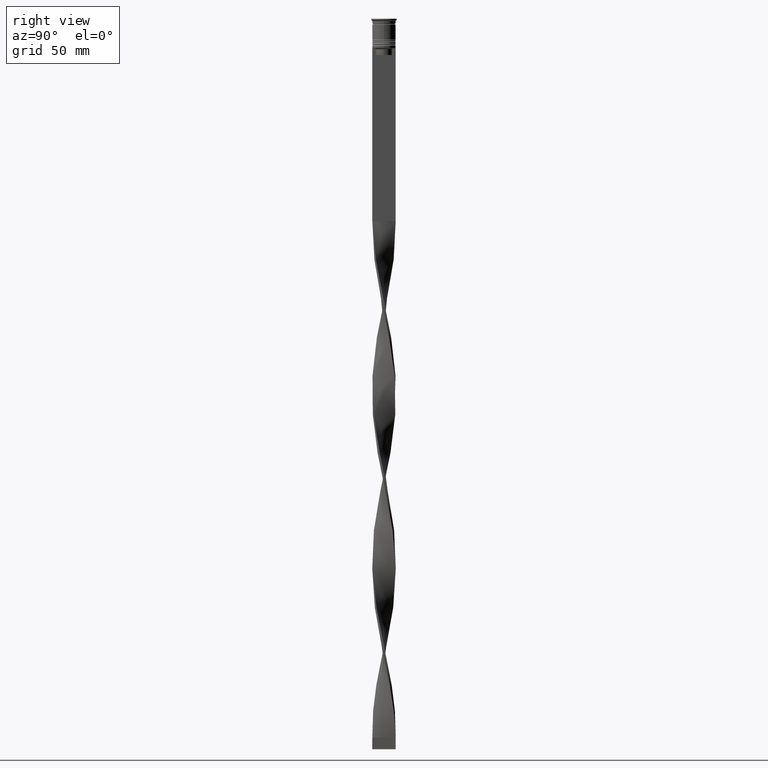
[diagram: clean part render]
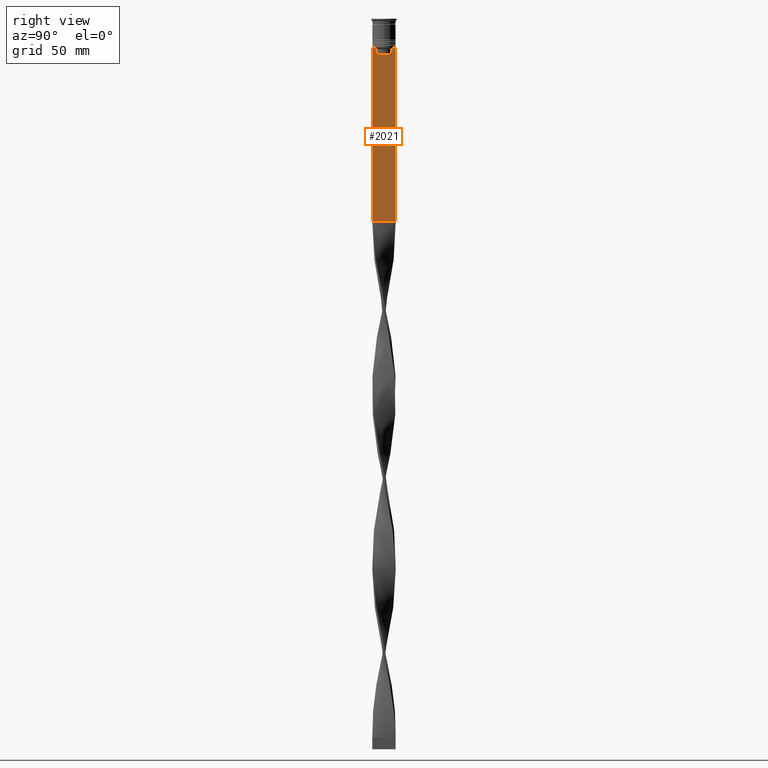
[diagram: same view with one face highlighted and labeled with its STEP entity id]
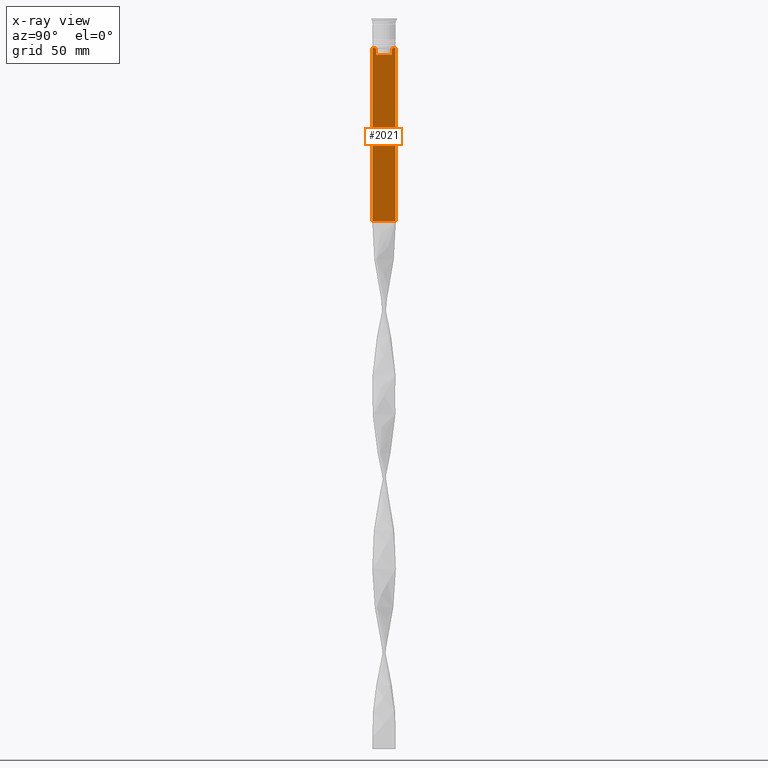
[diagram: x-ray of the same camera — body ghosted, the highlighted face saturated]
A machine part, right view. The second image highlights one B-rep face of the part: STEP entity #2021.
The next image is the same camera in x-ray: the body ghosted, the highlighted face saturated — about 0% of this face is hidden behind the body in this view.
In plain terms, the highlighted planar face has unit normal (-1, 0, 0).
Its self-contained STEP definition (entity closure, byte-faithful):
#77 = FACE_OUTER_BOUND ( 'NONE', #538, .T. ) ;
#220 = VECTOR ( 'NONE', #2049, 1000.000000000000000 ) ;
#249 = ORIENTED_EDGE ( 'NONE', *, *, #2091, .T. ) ;
#256 = VERTEX_POINT ( 'NONE', #3666 ) ;
#277 = CARTESIAN_POINT ( 'NONE',  ( 0.5000000000000000000, -4.999999999999999112, -12.50000000000000000 ) ) ;
#367 = CARTESIAN_POINT ( 'NONE',  ( 0.5000000000000000000, -4.999999999999999112, -12.50000000000000000 ) ) ;
#378 = VERTEX_POINT ( 'NONE', #1773 ) ;
#439 = EDGE_CURVE ( 'NONE', #256, #1438, #1915, .T. ) ;
#466 = CARTESIAN_POINT ( 'NONE',  ( 0.5000000000000000000, 3.531412678228260216, -12.83345231756357840 ) ) ;
#508 = VECTOR ( 'NONE', #3591, 1000.000000000000000 ) ;
#538 = EDGE_LOOP ( 'NONE', ( #1377, #1894, #1340, #3738, #2390, #3834, #1228, #1470, #2374, #249, #2669, #1766 ) ) ;
#571 = CARTESIAN_POINT ( 'NONE',  ( 0.5000000000000000000, -4.999999999999999112, -2.450124378879110054 ) ) ;
#596 = B_SPLINE_CURVE_WITH_KNOTS ( 'NONE', 3,
 ( #1448, #4014, #2131, #2150 ),
 .UNSPECIFIED., .F., .F.,
 ( 4, 4 ),
 ( 0.01632394437298965648, 0.01703543518243618576 ),
 .UNSPECIFIED. ) ;
#610 = EDGE_CURVE ( 'NONE', #855, #3111, #683, .T. ) ;
#670 = VERTEX_POINT ( 'NONE', #3481 ) ;
#683 = LINE ( 'NONE', #367, #508 ) ;
#728 = VERTEX_POINT ( 'NONE', #3526 ) ;
#768 = LINE ( 'NONE', #1712, #220 ) ;
#854 = LINE ( 'NONE', #3058, #982 ) ;
#855 = VERTEX_POINT ( 'NONE', #3470 ) ;
#901 = B_SPLINE_CURVE_WITH_KNOTS ( 'NONE', 3,
 ( #2032, #3997, #466, #2344 ),
 .UNSPECIFIED., .F., .F.,
 ( 4, 4 ),
 ( 0.006644825462451552783, 0.007355321358912435097 ),
 .UNSPECIFIED. ) ;
#950 = LINE ( 'NONE', #1852, #3840 ) ;
#970 = LINE ( 'NONE', #571, #1646 ) ;
#982 = VECTOR ( 'NONE', #4010, 1000.000000000000000 ) ;
#1000 = DIRECTION ( 'NONE',  ( 0.000000000000000000, 0.000000000000000000, -1.000000000000000000 ) ) ;
#1004 = DIRECTION ( 'NONE',  ( 0.000000000000000000, 0.000000000000000000, 1.000000000000000000 ) ) ;
#1038 = VECTOR ( 'NONE', #2006, 1000.000000000000000 ) ;
#1058 = CARTESIAN_POINT ( 'NONE',  ( 0.5000000000000000000, -4.874423042781575788, -12.50000000000000000 ) ) ;
#1081 = PLANE ( 'NONE',  #2037 ) ;
#1107 = VECTOR ( 'NONE', #1243, 1000.000000000000000 ) ;
#1134 = CARTESIAN_POINT ( 'NONE',  ( 0.5000000000000000000, 3.399999999999998135, -15.50000000000000000 ) ) ;
#1228 = ORIENTED_EDGE ( 'NONE', *, *, #439, .T. ) ;
#1243 = DIRECTION ( 'NONE',  ( 0.000000000000000000, -1.000000000000000000, 0.000000000000000000 ) ) ;
#1273 = DIRECTION ( 'NONE',  ( 0.000000000000000000, 0.000000000000000000, -1.000000000000000000 ) ) ;
#1340 = ORIENTED_EDGE ( 'NONE', *, *, #2496, .T. ) ;
#1377 = ORIENTED_EDGE ( 'NONE', *, *, #610, .T. ) ;
#1438 = VERTEX_POINT ( 'NONE', #1058 ) ;
#1448 = CARTESIAN_POINT ( 'NONE',  ( 0.5000000000000000000, -3.363034344160045208, -13.00000000000000178 ) ) ;
#1463 = CARTESIAN_POINT ( 'NONE',  ( 0.5000000000000000000, 5.000000000000000888, -12.50000000000000000 ) ) ;
#1470 = ORIENTED_EDGE ( 'NONE', *, *, #3775, .T. ) ;
#1499 = CARTESIAN_POINT ( 'NONE',  ( 0.5000000000000000000, -4.999999999999999112, -12.50000000000000000 ) ) ;
#1613 = DIRECTION ( 'NONE',  ( 0.000000000000000000, -1.000000000000000000, 0.000000000000000000 ) ) ;
#1646 = VECTOR ( 'NONE', #3455, 1000.000000000000000 ) ;
#1712 = CARTESIAN_POINT ( 'NONE',  ( 0.5000000000000000000, -4.999999999999999112, -86.50000000000000000 ) ) ;
#1766 = ORIENTED_EDGE ( 'NONE', *, *, #3444, .T. ) ;
#1773 = CARTESIAN_POINT ( 'NONE',  ( 0.5000000000000000000, -4.999999999999999112, -86.50000000000000000 ) ) ;
#1852 = CARTESIAN_POINT ( 'NONE',  ( 0.5000000000000000000, -4.999999999999999112, -12.50000000000000000 ) ) ;
#1894 = ORIENTED_EDGE ( 'NONE', *, *, #3216, .T. ) ;
#1915 = LINE ( 'NONE', #277, #1107 ) ;
#2006 = DIRECTION ( 'NONE',  ( -0.000000000000000000, -0.000000000000000000, 1.000000000000000000 ) ) ;
#2021 = ADVANCED_FACE ( 'NONE', ( #77 ), #1081, .F. ) ;
#2032 = CARTESIAN_POINT ( 'NONE',  ( 0.5000000000000000000, 3.867815921162742754, -12.50000000000000000 ) ) ;
#2037 = AXIS2_PLACEMENT_3D ( 'NONE', #2691, #2355, #1004 ) ;
#2049 = DIRECTION ( 'NONE',  ( 0.000000000000000000, 1.000000000000000000, 0.000000000000000000 ) ) ;
#2091 = EDGE_CURVE ( 'NONE', #378, #2781, #768, .T. ) ;
#2131 = CARTESIAN_POINT ( 'NONE',  ( 0.5000000000000000000, -3.699658232838647365, -12.66676999593996555 ) ) ;
#2150 = CARTESIAN_POINT ( 'NONE',  ( 0.5000000000000000000, -3.867815921162742754, -12.50000000000000000 ) ) ;
#2344 = CARTESIAN_POINT ( 'NONE',  ( 0.5000000000000000000, 3.363034344160045208, -13.00000000000000178 ) ) ;
#2355 = DIRECTION ( 'NONE',  ( -1.000000000000000000, 0.000000000000000000, 0.000000000000000000 ) ) ;
#2374 = ORIENTED_EDGE ( 'NONE', *, *, #3748, .T. ) ;
#2390 = ORIENTED_EDGE ( 'NONE', *, *, #2625, .T. ) ;
#2418 = LINE ( 'NONE', #1134, #2713 ) ;
#2496 = EDGE_CURVE ( 'NONE', #728, #3166, #3930, .T. ) ;
#2502 = VECTOR ( 'NONE', #1000, 1000.000000000000000 ) ;
#2517 = CARTESIAN_POINT ( 'NONE',  ( 0.5000000000000000000, 5.000000000000000888, -2.450124378879110054 ) ) ;
#2569 = CARTESIAN_POINT ( 'NONE',  ( 0.5000000000000000000, 3.363034344160045652, -15.50000000000000000 ) ) ;
#2615 = CARTESIAN_POINT ( 'NONE',  ( 0.5000000000000000000, 3.867815921162742754, -12.50000000000000000 ) ) ;
#2625 = EDGE_CURVE ( 'NONE', #670, #3097, #3888, .T. ) ;
#2669 = ORIENTED_EDGE ( 'NONE', *, *, #3720, .F. ) ;
#2691 = CARTESIAN_POINT ( 'NONE',  ( 0.5000000000000000000, -4.999999999999999112, -2.450124378879110054 ) ) ;
#2713 = VECTOR ( 'NONE', #3359, 1000.000000000000000 ) ;
#2772 = EDGE_CURVE ( 'NONE', #3097, #256, #596, .T. ) ;
#2781 = VERTEX_POINT ( 'NONE', #2807 ) ;
#2807 = CARTESIAN_POINT ( 'NONE',  ( 0.5000000000000000000, 5.000000000000000888, -86.50000000000000000 ) ) ;
#2852 = CARTESIAN_POINT ( 'NONE',  ( 0.5000000000000000000, -3.363034344160045208, -13.00000000000000178 ) ) ;
#2907 = CARTESIAN_POINT ( 'NONE',  ( 0.5000000000000000000, -3.363034344160045208, 0.000000000000000000 ) ) ;
#2936 = VERTEX_POINT ( 'NONE', #1499 ) ;
#2965 = CARTESIAN_POINT ( 'NONE',  ( 0.5000000000000000000, 3.363034344160045208, 0.000000000000000000 ) ) ;
#3037 = VECTOR ( 'NONE', #1273, 1000.000000000000000 ) ;
#3058 = CARTESIAN_POINT ( 'NONE',  ( 0.5000000000000000000, -4.999999999999999112, -12.50000000000000000 ) ) ;
#3097 = VERTEX_POINT ( 'NONE', #2852 ) ;
#3111 = VERTEX_POINT ( 'NONE', #2615 ) ;
#3166 = VERTEX_POINT ( 'NONE', #2569 ) ;
#3216 = EDGE_CURVE ( 'NONE', #3111, #728, #901, .T. ) ;
#3341 = EDGE_CURVE ( 'NONE', #3166, #670, #2418, .T. ) ;
#3359 = DIRECTION ( 'NONE',  ( 0.000000000000000000, -1.000000000000000000, 0.000000000000000000 ) ) ;
#3422 = VERTEX_POINT ( 'NONE', #1463 ) ;
#3444 = EDGE_CURVE ( 'NONE', #3422, #855, #854, .T. ) ;
#3455 = DIRECTION ( 'NONE',  ( 0.000000000000000000, 0.000000000000000000, -1.000000000000000000 ) ) ;
#3470 = CARTESIAN_POINT ( 'NONE',  ( 0.5000000000000000000, 4.874423042781575788, -12.50000000000000000 ) ) ;
#3481 = CARTESIAN_POINT ( 'NONE',  ( 0.5000000000000000000, -3.363034344160045652, -15.50000000000000000 ) ) ;
#3492 = LINE ( 'NONE', #2517, #3037 ) ;
#3526 = CARTESIAN_POINT ( 'NONE',  ( 0.5000000000000000000, 3.363034344160045208, -13.00000000000000178 ) ) ;
#3591 = DIRECTION ( 'NONE',  ( 0.000000000000000000, -1.000000000000000000, 0.000000000000000000 ) ) ;
#3666 = CARTESIAN_POINT ( 'NONE',  ( 0.5000000000000000000, -3.867815921162742754, -12.50000000000000000 ) ) ;
#3720 = EDGE_CURVE ( 'NONE', #3422, #2781, #3492, .T. ) ;
#3738 = ORIENTED_EDGE ( 'NONE', *, *, #3341, .T. ) ;
#3748 = EDGE_CURVE ( 'NONE', #2936, #378, #970, .T. ) ;
#3775 = EDGE_CURVE ( 'NONE', #1438, #2936, #950, .T. ) ;
#3834 = ORIENTED_EDGE ( 'NONE', *, *, #2772, .T. ) ;
#3840 = VECTOR ( 'NONE', #1613, 1000.000000000000000 ) ;
#3888 = LINE ( 'NONE', #2907, #1038 ) ;
#3930 = LINE ( 'NONE', #2965, #2502 ) ;
#3997 = CARTESIAN_POINT ( 'NONE',  ( 0.5000000000000000000, 3.699657965831574913, -12.66677026074361301 ) ) ;
#4010 = DIRECTION ( 'NONE',  ( 0.000000000000000000, -1.000000000000000000, 0.000000000000000000 ) ) ;
#4014 = CARTESIAN_POINT ( 'NONE',  ( 0.5000000000000000000, -3.531412985305424801, -12.83345201382502765 ) ) ;